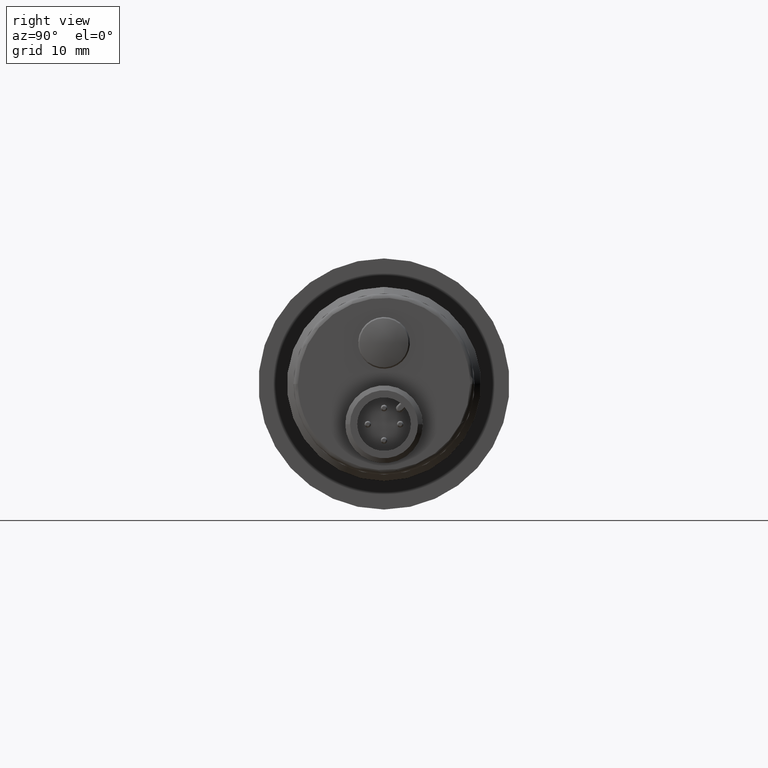
[diagram: clean part render]
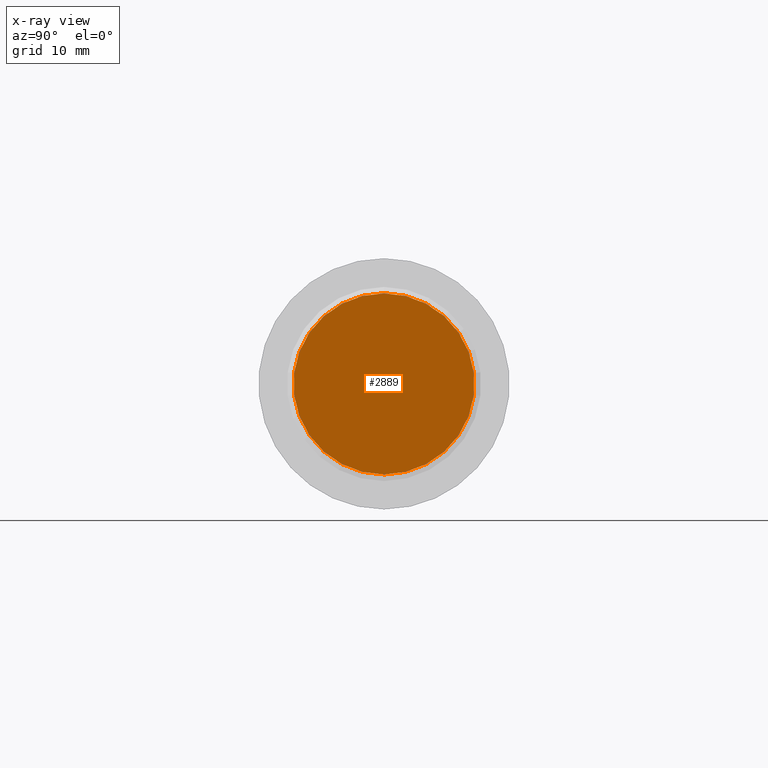
[diagram: x-ray — body ghosted, one internal face saturated and labeled with its STEP entity id]
A machine part, right view, then the same camera in x-ray: the body is ghosted and one INTERNAL B-rep face — a face not visible from any outside direction — is saturated and labeled: STEP entity #2889.
In plain terms, the highlighted planar face has unit normal (1, 0, -0).
Its self-contained STEP definition (entity closure, byte-faithful):
#301 = VERTEX_POINT ( 'NONE', #1765 ) ;
#559 = DIRECTION ( 'NONE',  ( -1.000000000000000000, 0.0000000000000000000, 1.524659305057740100E-016 ) ) ;
#891 = FACE_OUTER_BOUND ( 'NONE', #1883, .T. ) ;
#930 = CARTESIAN_POINT ( 'NONE',  ( 3.370078740157480100, 0.0000000000000000000, -5.138221909958344700E-016 ) ) ;
#984 = DIRECTION ( 'NONE',  ( 1.000000000000000000, 0.0000000000000000000, -1.524659305057740100E-016 ) ) ;
#1705 = AXIS2_PLACEMENT_3D ( 'NONE', #4098, #984, #2888 ) ;
#1765 = CARTESIAN_POINT ( 'NONE',  ( 3.370078740157480100, 0.0000000000000000000, -0.5511811023622053000 ) ) ;
#1802 = EDGE_CURVE ( 'NONE', #2454, #301, #3486, .T. ) ;
#1883 = EDGE_LOOP ( 'NONE', ( #3404, #2678 ) ) ;
#1975 = CARTESIAN_POINT ( 'NONE',  ( 3.370078740157480100, 6.750021727583836700E-017, 0.5511811023622041900 ) ) ;
#2107 = PLANE ( 'NONE',  #1705 ) ;
#2454 = VERTEX_POINT ( 'NONE', #1975 ) ;
#2676 = CARTESIAN_POINT ( 'NONE',  ( 3.370078740157480100, 0.0000000000000000000, -5.138221909958344700E-016 ) ) ;
#2678 = ORIENTED_EDGE ( 'NONE', *, *, #1802, .F. ) ;
#2888 = DIRECTION ( 'NONE',  ( -1.524659305057740100E-016, 0.0000000000000000000, -1.000000000000000000 ) ) ;
#2889 = ADVANCED_FACE ( 'NONE', ( #891 ), #2107, .T. ) ;
#3246 = AXIS2_PLACEMENT_3D ( 'NONE', #2676, #4653, #4238 ) ;
#3404 = ORIENTED_EDGE ( 'NONE', *, *, #4568, .F. ) ;
#3486 = CIRCLE ( 'NONE', #4771, 0.5511811023622047400 ) ;
#3651 = DIRECTION ( 'NONE',  ( 0.0000000000000000000, 0.0000000000000000000, -1.000000000000000000 ) ) ;
#3898 = CIRCLE ( 'NONE', #3246, 0.5511811023622047400 ) ;
#4098 = CARTESIAN_POINT ( 'NONE',  ( 3.370078740157480100, 0.0000000000000000000, 0.5511811023622047400 ) ) ;
#4238 = DIRECTION ( 'NONE',  ( 0.0000000000000000000, 0.0000000000000000000, -1.000000000000000000 ) ) ;
#4568 = EDGE_CURVE ( 'NONE', #301, #2454, #3898, .T. ) ;
#4653 = DIRECTION ( 'NONE',  ( -1.000000000000000000, 0.0000000000000000000, 1.524659305057740100E-016 ) ) ;
#4771 = AXIS2_PLACEMENT_3D ( 'NONE', #930, #559, #3651 ) ;